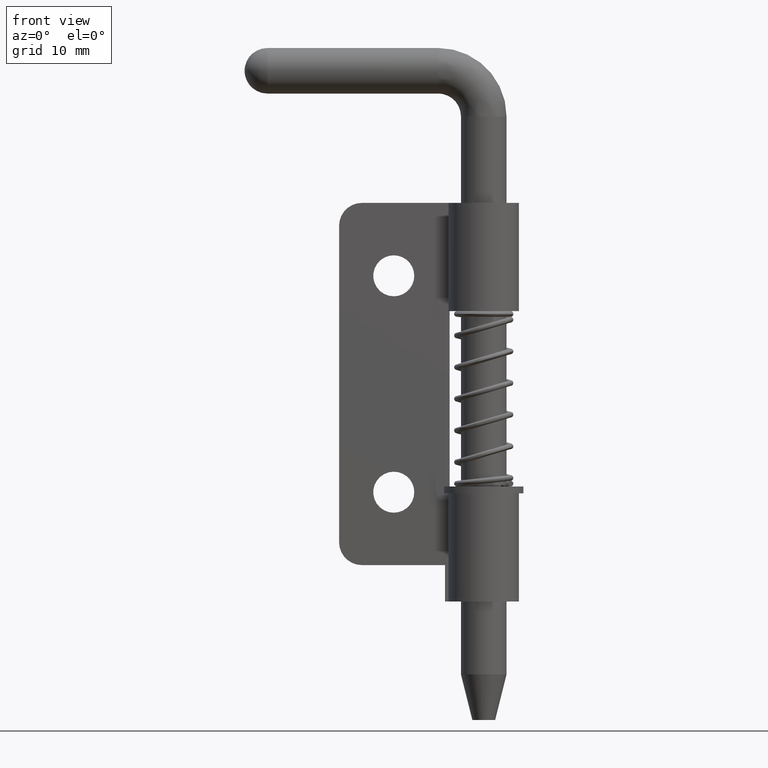
[diagram: clean part render]
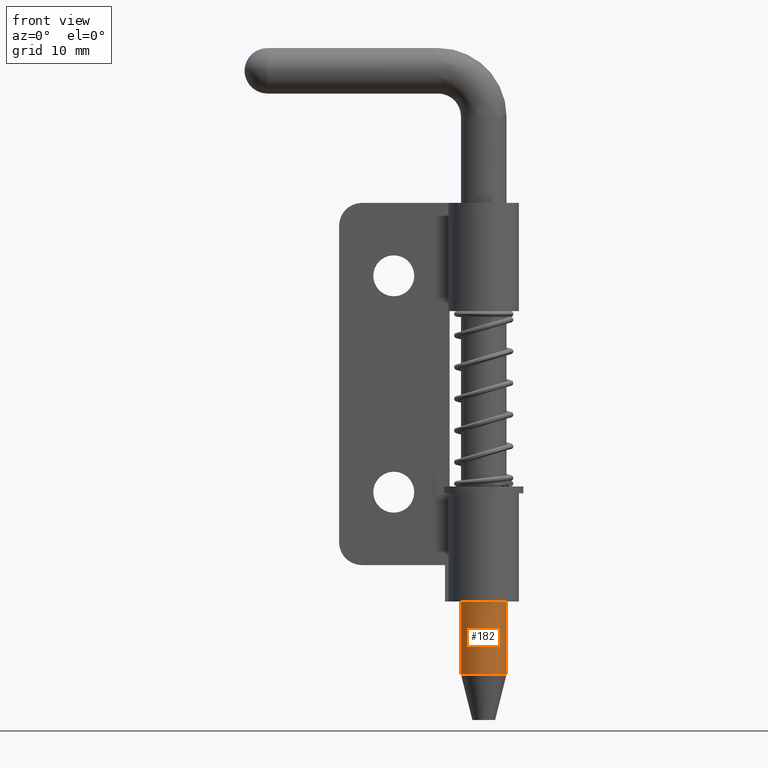
[diagram: same view with one face highlighted and labeled with its STEP entity id]
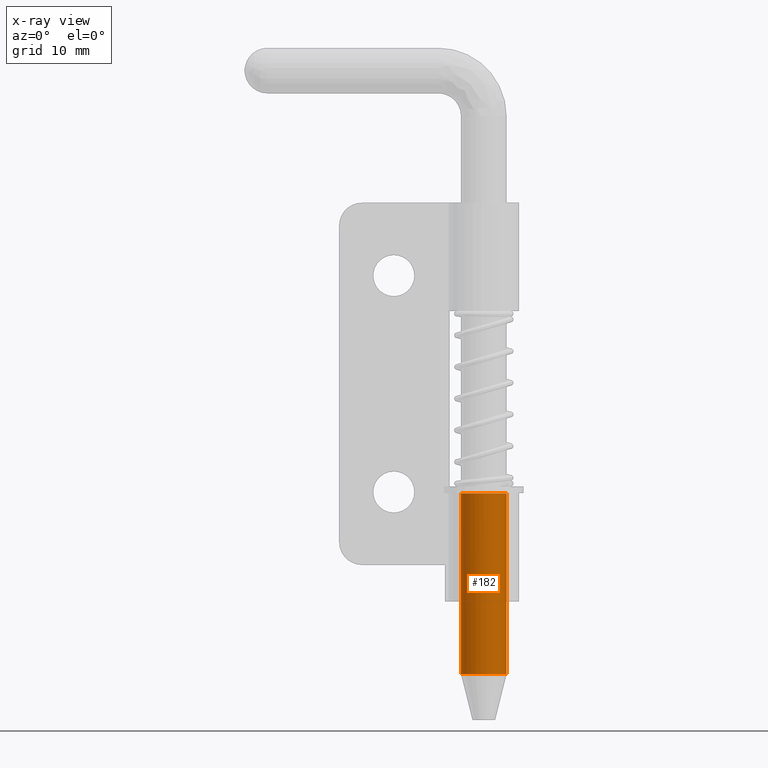
[diagram: x-ray of the same camera — body ghosted, the highlighted face saturated]
A machine part, front view. The second image highlights one B-rep face of the part: STEP entity #182.
The next image is the same camera in x-ray: the body ghosted, the highlighted face saturated — about 0% of this face is hidden behind the body in this view.
In plain terms, the highlighted cylindrical surface (edge-blend (fillet) strip) has radius 2 mm, axis along (0, 0, 1).
Its self-contained STEP definition (entity closure, byte-faithful):
#182=ADVANCED_FACE('',(#569),#568,.T.);
#568=CYLINDRICAL_SURFACE('',#1355,2.00000000000E+00);
#569=FACE_OUTER_BOUND('',#1356,.T.);
#1352=CARTESIAN_POINT('',(0.00000000000E+00,0.00000000000E+00,0.00000000000E+00));
#1353=DIRECTION('',(0.00000000000E+00,-0.00000000000E+00,1.00000000000E+00));
#1354=DIRECTION('',(1.00000000000E+00,0.00000000000E+00,0.00000000000E+00));
#1355=AXIS2_PLACEMENT_3D('',#1352,#1353,#1354);
#1356=EDGE_LOOP('',(#3281,#3282,#3283,#3284,#3285,#3286));
#3281=ORIENTED_EDGE('',*,*,#3634,.F.);
#3282=ORIENTED_EDGE('',*,*,#3638,.T.);
#3283=ORIENTED_EDGE('',*,*,#3558,.T.);
#3284=ORIENTED_EDGE('',*,*,#3588,.T.);
#3285=ORIENTED_EDGE('',*,*,#3619,.T.);
#3286=ORIENTED_EDGE('',*,*,#3639,.F.);
#3558=EDGE_CURVE('',#3859,#3851,#3860,.T.);
#3588=EDGE_CURVE('',#3851,#4059,#4066,.T.);
#3619=EDGE_CURVE('',#4059,#3769,#4263,.T.);
#3634=EDGE_CURVE('',#4359,#4360,#4361,.T.);
#3638=EDGE_CURVE('',#4359,#3859,#4385,.T.);
#3639=EDGE_CURVE('',#4360,#3769,#4391,.T.);
#3769=VERTEX_POINT('',#5245);
#3851=VERTEX_POINT('',#5295);
#3859=VERTEX_POINT('',#5300);
#3860=CIRCLE('',#5304,2.00000000000E+00);
#4059=VERTEX_POINT('',#5436);
#4066=CIRCLE('',#5443,2.00000000000E+00);
#4263=CIRCLE('',#5558,2.00000000000E+00);
#4359=VERTEX_POINT('',#5609);
#4360=VERTEX_POINT('',#5610);
#4361=CIRCLE('',#5614,2.00000000000E+00);
#4385=(BOUNDED_CURVE() B_SPLINE_CURVE(1,(#5623,#5624),.UNSPECIFIED.,.F.,.F.) B_SPLINE_CURVE_WITH_KNOTS((2,2),(8.33333328360E-02,9.16666665505E-01),.UNSPECIFIED.) CURVE() GEOMETRIC_REPRESENTATION_ITEM() RATIONAL_B_SPLINE_CURVE((1.00000000000E+00,1.00000000000E+00)) REPRESENTATION_ITEM('') );
#4391=(BOUNDED_CURVE() B_SPLINE_CURVE(1,(#5625,#5626),.UNSPECIFIED.,.F.,.F.) B_SPLINE_CURVE_WITH_KNOTS((2,2),(8.33333333333E-02,9.16666666667E-01),.UNSPECIFIED.) CURVE() GEOMETRIC_REPRESENTATION_ITEM() RATIONAL_B_SPLINE_CURVE((7.50000000000E-01,7.50000000000E-01)) REPRESENTATION_ITEM('') );
#5245=CARTESIAN_POINT('',(-2.00000000000E+00,0.00000000000E+00,-3.31000000000E+01));
#5295=CARTESIAN_POINT('',(7.87446123226E-01,-1.83845821356E+00,-3.31000000000E+01));
#5300=CARTESIAN_POINT('',(2.00000000000E+00,0.00000000000E+00,-3.31000000000E+01));
#5301=CARTESIAN_POINT('',(0.00000000000E+00,0.00000000000E+00,-3.31000000000E+01));
#5302=DIRECTION('',(-0.00000000000E+00,0.00000000000E+00,-1.00000000000E+00));
#5303=DIRECTION('',(1.00000000000E+00,-0.00000000000E+00,-0.00000000000E+00));
#5304=AXIS2_PLACEMENT_3D('',#5301,#5302,#5303);
#5436=CARTESIAN_POINT('',(-7.87446123226E-01,-1.83845821356E+00,-3.31000000000E+01));
#5440=CARTESIAN_POINT('',(0.00000000000E+00,0.00000000000E+00,-3.31000000000E+01));
#5441=DIRECTION('',(-0.00000000000E+00,0.00000000000E+00,-1.00000000000E+00));
#5442=DIRECTION('',(1.00000000000E+00,-0.00000000000E+00,-0.00000000000E+00));
#5443=AXIS2_PLACEMENT_3D('',#5440,#5441,#5442);
#5555=CARTESIAN_POINT('',(0.00000000000E+00,0.00000000000E+00,-3.31000000000E+01));
#5556=DIRECTION('',(-0.00000000000E+00,0.00000000000E+00,-1.00000000000E+00));
#5557=DIRECTION('',(1.00000000000E+00,-0.00000000000E+00,-0.00000000000E+00));
#5558=AXIS2_PLACEMENT_3D('',#5555,#5556,#5557);
#5609=CARTESIAN_POINT('',(2.00000000000E+00,2.22044604925E-16,-4.89999999999E+01));
#5610=CARTESIAN_POINT('',(-2.00000000000E+00,0.00000000000E+00,-4.89999999999E+01));
#5611=CARTESIAN_POINT('',(0.00000000000E+00,0.00000000000E+00,-4.89999999999E+01));
#5612=DIRECTION('',(-0.00000000000E+00,0.00000000000E+00,-1.00000000000E+00));
#5613=DIRECTION('',(-1.00000000000E+00,-1.22460635382E-16,0.00000000000E+00));
#5614=AXIS2_PLACEMENT_3D('',#5611,#5612,#5613);
#5623=CARTESIAN_POINT('',(2.00000000000E+00,0.00000000000E+00,-4.90000000094E+01));
#5624=CARTESIAN_POINT('',(2.00000000000E+00,0.00000000000E+00,-3.31000000222E+01));
#5625=CARTESIAN_POINT('',(-2.00000000000E+00,-7.40148683083E-17,-4.89999999999E+01));
#5626=CARTESIAN_POINT('',(-2.00000000000E+00,-7.40148683083E-17,-3.31000000000E+01));